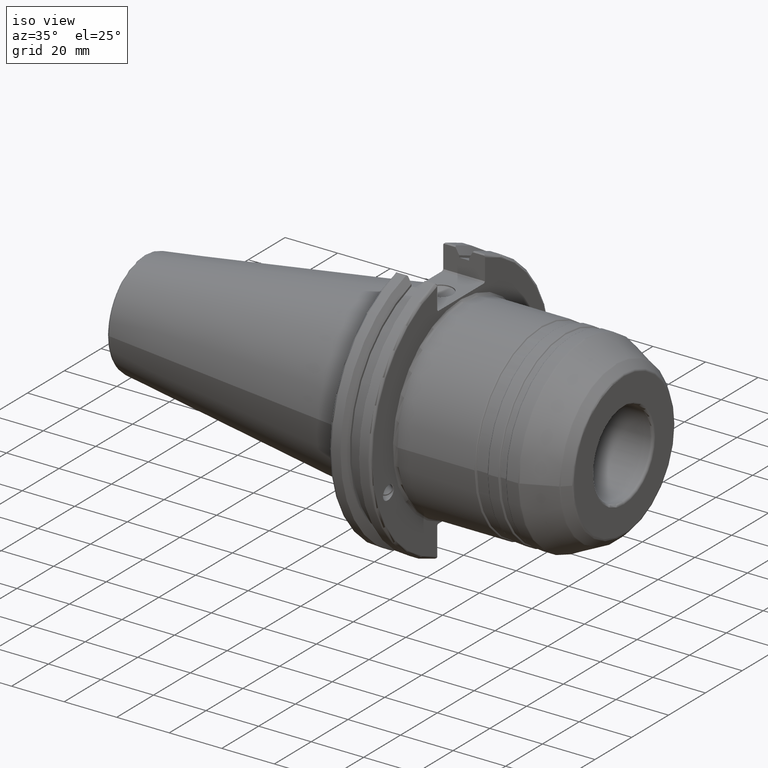
[diagram: clean part render]
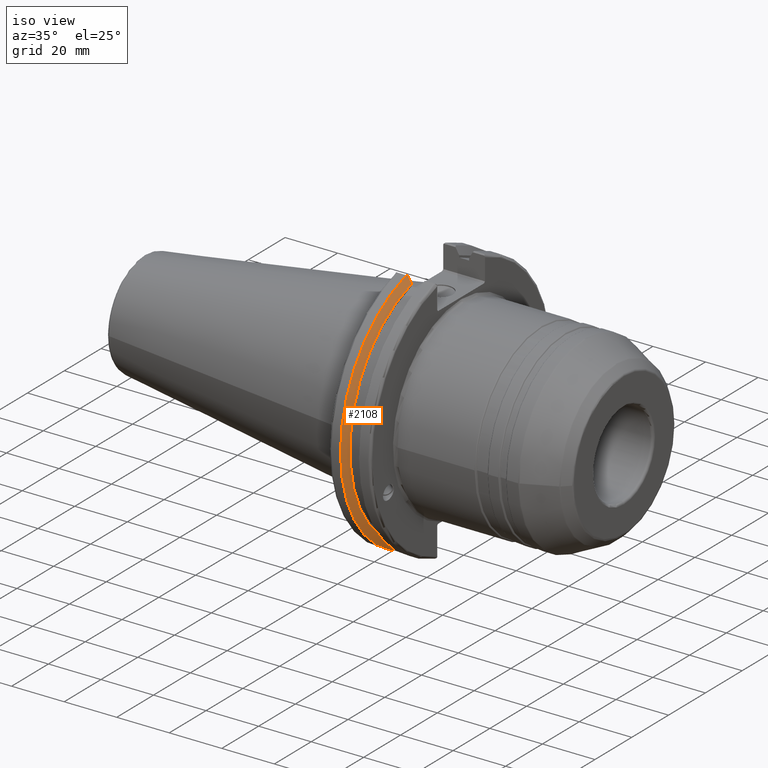
[diagram: same view with one face highlighted and labeled with its STEP entity id]
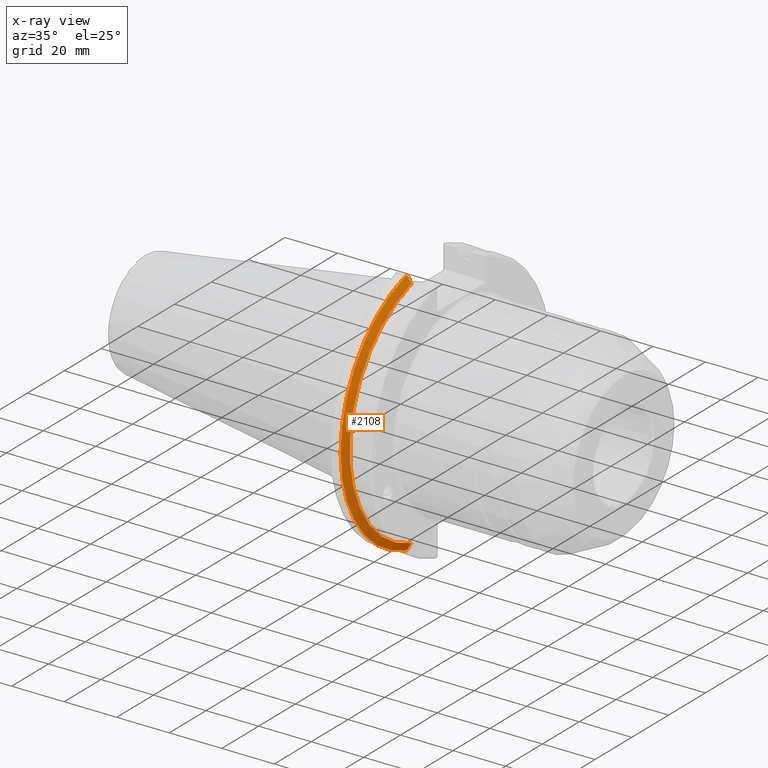
[diagram: x-ray of the same camera — body ghosted, the highlighted face saturated]
A machine part, iso view. The second image highlights one B-rep face of the part: STEP entity #2108.
The next image is the same camera in x-ray: the body ghosted, the highlighted face saturated — about 0% of this face is hidden behind the body in this view.
In plain terms, the highlighted conical surface has half-angle 60 deg.
Its self-contained STEP definition (entity closure, byte-faithful):
#18=(
BOUNDED_CURVE()
B_SPLINE_CURVE(2,(#3800,#3801,#3802),.UNSPECIFIED.,.F.,.F.)
B_SPLINE_CURVE_WITH_KNOTS((3,3),(0.,0.275823910674601),.UNSPECIFIED.)
CURVE()
GEOMETRIC_REPRESENTATION_ITEM()
RATIONAL_B_SPLINE_CURVE((1.,1.00038235573593,1.00012873636487))
REPRESENTATION_ITEM('')
);
#21=(
BOUNDED_CURVE()
B_SPLINE_CURVE(2,(#3828,#3829,#3830),.UNSPECIFIED.,.F.,.F.)
B_SPLINE_CURVE_WITH_KNOTS((3,3),(0.0558332664507492,0.331657177124507),
 .UNSPECIFIED.)
CURVE()
GEOMETRIC_REPRESENTATION_ITEM()
RATIONAL_B_SPLINE_CURVE((1.00012873636807,1.00038235574544,1.))
REPRESENTATION_ITEM('')
);
#22=(
BOUNDED_CURVE()
B_SPLINE_CURVE(2,(#3863,#3864,#3865),.UNSPECIFIED.,.F.,.F.)
B_SPLINE_CURVE_WITH_KNOTS((3,3),(0.,0.0648240472897372),.UNSPECIFIED.)
CURVE()
GEOMETRIC_REPRESENTATION_ITEM()
RATIONAL_B_SPLINE_CURVE((1.,1.00011477674836,1.00019140645948))
REPRESENTATION_ITEM('')
);
#23=(
BOUNDED_CURVE()
B_SPLINE_CURVE(2,(#3871,#3872,#3873),.UNSPECIFIED.,.F.,.F.)
B_SPLINE_CURVE_WITH_KNOTS((3,3),(0.325260944932348,0.390084992222201),
 .UNSPECIFIED.)
CURVE()
GEOMETRIC_REPRESENTATION_ITEM()
RATIONAL_B_SPLINE_CURVE((1.00019140645916,1.00011477674817,1.))
REPRESENTATION_ITEM('')
);
#68=CONICAL_SURFACE('',#2419,47.8172386482472,1.0471975511966);
#259=FACE_OUTER_BOUND('',#378,.T.);
#378=EDGE_LOOP('',(#1954,#1955,#1956,#1957,#1958,#1959));
#722=CIRCLE('',#2361,49.2125);
#749=CIRCLE('',#2420,46.4219772964944);
#939=VERTEX_POINT('',#3797);
#940=VERTEX_POINT('',#3799);
#949=VERTEX_POINT('',#3825);
#950=VERTEX_POINT('',#3827);
#954=VERTEX_POINT('',#3861);
#955=VERTEX_POINT('',#3867);
#1234=EDGE_CURVE('',#940,#939,#18,.T.);
#1245=EDGE_CURVE('',#950,#949,#21,.T.);
#1253=EDGE_CURVE('',#954,#939,#22,.T.);
#1255=EDGE_CURVE('',#954,#955,#722,.T.);
#1256=EDGE_CURVE('',#950,#955,#23,.T.);
#1314=EDGE_CURVE('',#940,#949,#749,.T.);
#1954=ORIENTED_EDGE('',*,*,#1256,.F.);
#1955=ORIENTED_EDGE('',*,*,#1245,.T.);
#1956=ORIENTED_EDGE('',*,*,#1314,.F.);
#1957=ORIENTED_EDGE('',*,*,#1234,.T.);
#1958=ORIENTED_EDGE('',*,*,#1253,.F.);
#1959=ORIENTED_EDGE('',*,*,#1255,.T.);
#2108=ADVANCED_FACE('',(#259),#68,.T.);
#2361=AXIS2_PLACEMENT_3D('',#3869,#2964,#2965);
#2419=AXIS2_PLACEMENT_3D('',#4026,#3101,#3102);
#2420=AXIS2_PLACEMENT_3D('',#4027,#3103,#3104);
#2964=DIRECTION('center_axis',(1.,0.,0.));
#2965=DIRECTION('ref_axis',(0.,0.,-1.));
#3101=DIRECTION('center_axis',(-1.,0.,0.));
#3102=DIRECTION('ref_axis',(0.,-1.,-1.22464679914735E-16));
#3103=DIRECTION('center_axis',(1.,0.,0.));
#3104=DIRECTION('ref_axis',(0.,0.,-1.));
#3797=CARTESIAN_POINT('',(7.88638960562424,-12.95,46.9780755322918));
#3799=CARTESIAN_POINT('',(9.2191,-12.95,44.5791147973604));
#3800=CARTESIAN_POINT('Ctrl Pts',(9.2191,-12.95,44.5791147973604));
#3801=CARTESIAN_POINT('Ctrl Pts',(8.57020449055857,-12.95,45.7494966802148));
#3802=CARTESIAN_POINT('Ctrl Pts',(7.88638960562424,-12.95,46.9780755322918));
#3825=CARTESIAN_POINT('',(9.2191,-12.95,-44.5791147973604));
#3827=CARTESIAN_POINT('',(7.88638960562425,-12.95,-46.9780755322918));
#3828=CARTESIAN_POINT('Ctrl Pts',(7.88638960562425,-12.95,-46.9780755322918));
#3829=CARTESIAN_POINT('Ctrl Pts',(8.57020449054166,-12.95,-45.7494966802452));
#3830=CARTESIAN_POINT('Ctrl Pts',(9.2191,-12.95,-44.5791147973604));
#3861=CARTESIAN_POINT('',(7.60799096595127,-13.4317035994433,47.3440544806494));
#3863=CARTESIAN_POINT('Ctrl Pts',(7.60799096595126,-13.4317035994433,47.3440544806494));
#3864=CARTESIAN_POINT('Ctrl Pts',(7.7482689666382,-13.1896660169966,47.1601640966265));
#3865=CARTESIAN_POINT('Ctrl Pts',(7.88638960562424,-12.95,46.9780755322918));
#3867=CARTESIAN_POINT('',(7.60799096595127,-13.4317035994433,-47.3440544806494));
#3869=CARTESIAN_POINT('Origin',(7.60799096595127,0.,0.));
#3871=CARTESIAN_POINT('Ctrl Pts',(7.88638960562425,-12.95,-46.9780755322918));
#3872=CARTESIAN_POINT('Ctrl Pts',(7.74826896663813,-13.1896660169967,-47.1601640966265));
#3873=CARTESIAN_POINT('Ctrl Pts',(7.60799096595127,-13.4317035994434,-47.3440544806494));
#4026=CARTESIAN_POINT('Origin',(8.41354548297563,0.,0.));
#4027=CARTESIAN_POINT('Origin',(9.2191,0.,0.));